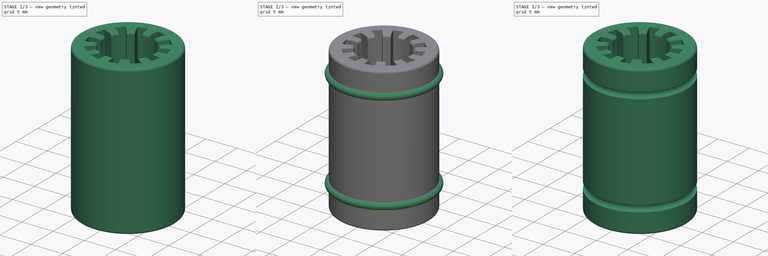
[diagram: build sequence overview — one tinted view per stage of 3, left to right]
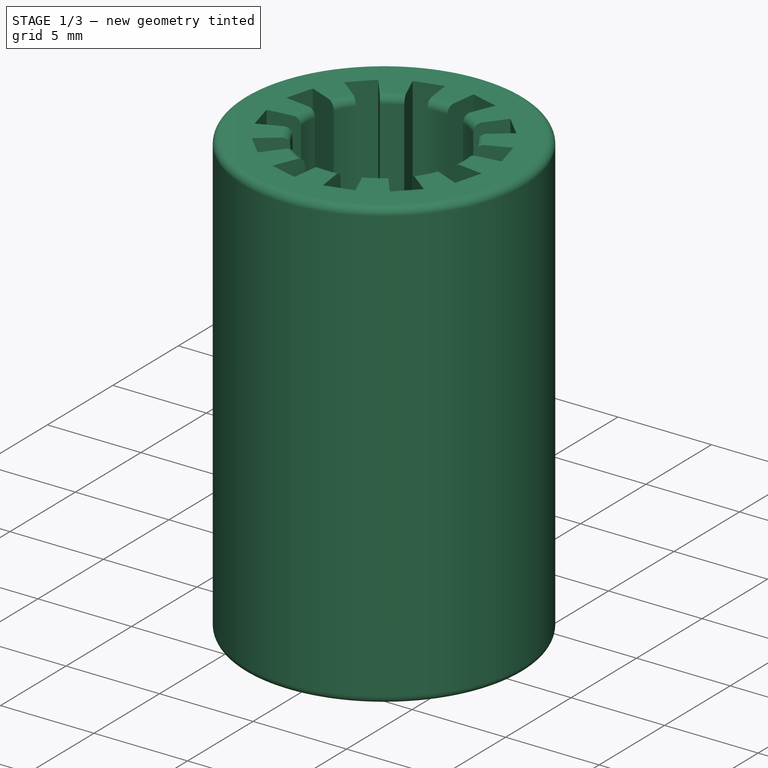
[diagram: stage 1 of 3 — iso view after this stage's code; geometry added in this stage tinted green]
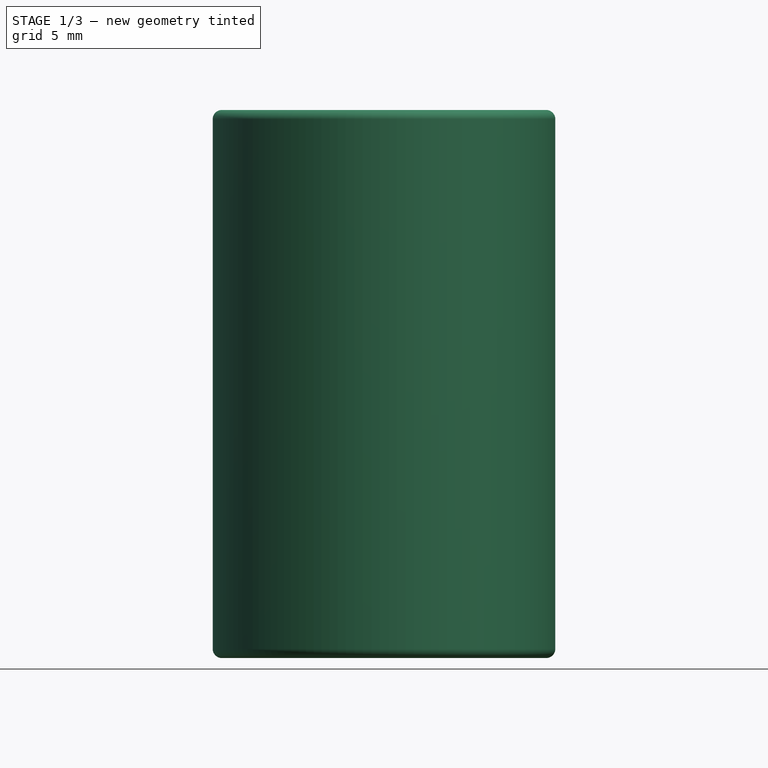
[diagram: stage 1 of 3 — front view after this stage's code; geometry added in this stage tinted green]
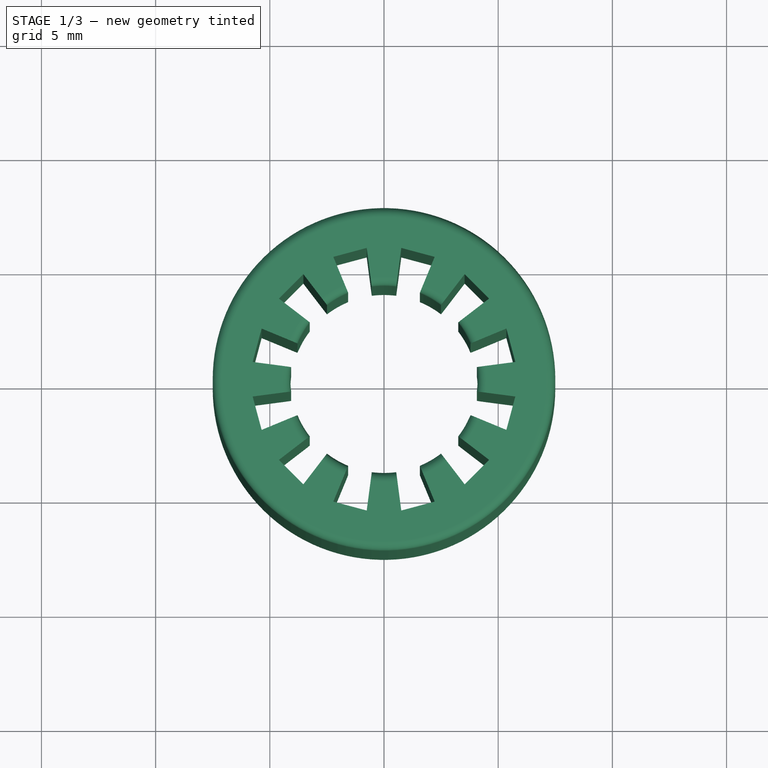
[diagram: stage 1 of 3 — top view after this stage's code; geometry added in this stage tinted green]
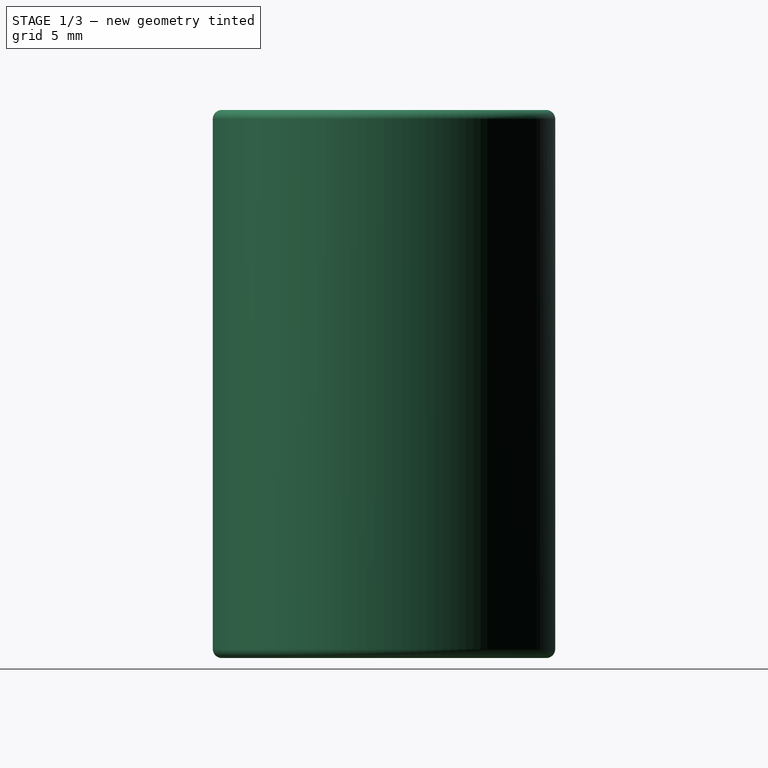
[diagram: stage 1 of 3 — right view after this stage's code; geometry added in this stage tinted green]
FCSTD DOCUMENT  (FreeCAD 0.16R6712 (Git))
Label: SleeveBearing
License: All rights reserved
LicenseURL: http://en.wikipedia.org/wiki/All_rights_reserved
objects: Part::Torus×2, Sketcher::SketchObject×1, PartDesign::Pad×1, Part::MultiFuse×1, PartDesign::Fillet×1, Part::Cut×1, Spreadsheet::Sheet×1
note: 8 computed .brp shape members not serialized (recipe doc carries the construction recipe); baked Part::Feature solids carry a one-line shape summary decoded from their .brp

FEATURE [Sketcher::SketchObject] Sketch
  expr: Constraints[77] = Dimensions.ContactAngle
  expr: Constraints[83] = (Dimensions.InnerRadius + Dimensions.OuterRadius) / 2
  expr: Constraints[0] = Dimensions.OuterRadius
  expr: Constraints[81] = Dimensions.InnerRadius
  sketch-geometry (98):
    g0: Circle CenterX=0 CenterY=0 CenterZ=0 NormalX=0 NormalY=0 NormalZ=1 Radius=7.5
    g1: LineSegment [constr] StartX=-0.978946 StartY=7.43584 StartZ=0 EndX=0.978946 EndY=7.43584 EndZ=0
    g2: LineSegment [constr] StartX=0.978946 StartY=7.43584 StartZ=0 EndX=2.87013 EndY=6.9291 EndZ=0
    g3: LineSegment [constr] StartX=2.87013 StartY=6.9291 StartZ=0 EndX=4.56571 EndY=5.95015 EndZ=0
    g4: LineSegment [constr] StartX=4.56571 StartY=5.95015 StartZ=0 EndX=5.95015 EndY=4.56571 EndZ=0
    g5: LineSegment [constr] StartX=5.95015 StartY=4.56571 StartZ=0 EndX=6.9291 EndY=2.87013 EndZ=0
    g6: LineSegment [constr] StartX=6.9291 StartY=2.87013 StartZ=0 EndX=7.43584 EndY=0.978946 EndZ=0
    g7: LineSegment [constr] StartX=7.43584 StartY=0.978946 StartZ=0 EndX=7.43584 EndY=-0.978946 EndZ=0
    g8: LineSegment [constr] StartX=7.43584 StartY=-0.978946 StartZ=0 EndX=6.9291 EndY=-2.87013 EndZ=0
    g9: LineSegment [constr] StartX=6.9291 StartY=-2.87013 StartZ=0 EndX=5.95015 EndY=-4.56571 EndZ=0
    g10: LineSegment [constr] StartX=5.95015 StartY=-4.56571 StartZ=0 EndX=4.56571 EndY=-5.95015 EndZ=0
    g11: LineSegment [constr] StartX=4.56571 StartY=-5.95015 StartZ=0 EndX=2.87013 EndY=-6.9291 EndZ=0
    g12: LineSegment [constr] StartX=2.87013 StartY=-6.9291 StartZ=0 EndX=0.978946 EndY=-7.43584 EndZ=0
    g13: LineSegment [constr] StartX=0.978946 StartY=-7.43584 StartZ=0 EndX=-0.978946 EndY=-7.43584 EndZ=0
    g14: LineSegment [constr] StartX=-0.978946 StartY=-7.43584 StartZ=0 EndX=-2.87013 EndY=-6.9291 EndZ=0
    g15: LineSegment [constr] StartX=-2.87013 StartY=-6.9291 StartZ=0 EndX=-4.56571 EndY=-5.95015 EndZ=0
    g16: LineSegment [constr] StartX=-4.56571 StartY=-5.95015 StartZ=0 EndX=-5.95015 EndY=-4.56571 EndZ=0
    g17: LineSegment [constr] StartX=-5.95015 StartY=-4.56571 StartZ=0 EndX=-6.9291 EndY=-2.87013 EndZ=0
    g18: LineSegment [constr] StartX=-6.9291 StartY=-2.87013 StartZ=0 EndX=-7.43584 EndY=-0.978946 EndZ=0
    g19: LineSegment [constr] StartX=-7.43584 StartY=-0.978946 StartZ=0 EndX=-7.43584 EndY=0.978946 EndZ=0
    g20: LineSegment [constr] StartX=-7.43584 StartY=0.978946 StartZ=0 EndX=-6.9291 EndY=2.87013 EndZ=0
    g21: LineSegment [constr] StartX=-6.9291 StartY=2.87013 StartZ=0 EndX=-5.95015 EndY=4.56571 EndZ=0
    g22: LineSegment [constr] StartX=-5.95015 StartY=4.56571 StartZ=0 EndX=-4.56571 EndY=5.95015 EndZ=0
    g23: LineSegment [constr] StartX=-4.56571 StartY=5.95015 StartZ=0 EndX=-2.87013 EndY=6.9291 EndZ=0
    g24: LineSegment [constr] StartX=-2.87013 StartY=6.9291 StartZ=0 EndX=-0.978946 EndY=7.43584 EndZ=0
    g25: LineSegment [constr] StartX=0 StartY=0 StartZ=0 EndX=-0.978946 EndY=7.43584 EndZ=0
    g26: LineSegment [constr] StartX=0 StartY=0 StartZ=0 EndX=0.978946 EndY=7.43584 EndZ=0
    g27: ArcOfCircle CenterX=0 CenterY=0 CenterZ=0 NormalX=0 NormalY=0 NormalZ=1 Radius=4.1 StartAngle=1.4399 EndAngle=1.7017
    g28: Circle [constr] CenterX=0 CenterY=0 CenterZ=0 NormalX=0 NormalY=0 NormalZ=1 Radius=5.8
    g29: LineSegment [constr] StartX=0 StartY=0 StartZ=0 EndX=2.87013 EndY=6.9291 EndZ=0
    g30: LineSegment [constr] StartX=0 StartY=0 StartZ=0 EndX=4.56571 EndY=5.95015 EndZ=0
    g31: LineSegment [constr] StartX=0 StartY=0 StartZ=0 EndX=5.95015 EndY=4.56571 EndZ=0
    g32: LineSegment [constr] StartX=0 StartY=0 StartZ=0 EndX=-2.87013 EndY=6.9291 EndZ=0
    g33: LineSegment [constr] StartX=0 StartY=0 StartZ=0 EndX=-4.56571 EndY=5.95015 EndZ=0
    g34: LineSegment [constr] StartX=0 StartY=0 StartZ=0 EndX=-5.95015 EndY=4.56571 EndZ=0
    g35: LineSegment [constr] StartX=0 StartY=0 StartZ=0 EndX=-6.9291 EndY=2.87013 EndZ=0
    g36: LineSegment [constr] StartX=0 StartY=0 StartZ=0 EndX=-7.43584 EndY=0.978946 EndZ=0
    g37: LineSegment [constr] StartX=0 StartY=0 StartZ=0 EndX=6.9291 EndY=2.87013 EndZ=0
    g38: LineSegment [constr] StartX=0 StartY=0 StartZ=0 EndX=7.43584 EndY=0.978946 EndZ=0
    g39: LineSegment [constr] StartX=0 StartY=0 StartZ=0 EndX=7.43584 EndY=-0.978946 EndZ=0
    g40: LineSegment [constr] StartX=0 StartY=0 StartZ=0 EndX=-7.43584 EndY=-0.978946 EndZ=0
    g41: LineSegment [constr] StartX=0 StartY=0 StartZ=0 EndX=-6.9291 EndY=-2.87013 EndZ=0
    g42: LineSegment [constr] StartX=0 StartY=0 StartZ=0 EndX=6.9291 EndY=-2.87013 EndZ=0
    g43: LineSegment [constr] StartX=0 StartY=0 StartZ=0 EndX=5.95015 EndY=-4.56571 EndZ=0
    g44: LineSegment [constr] StartX=0 StartY=0 StartZ=0 EndX=4.56571 EndY=-5.95015 EndZ=0
    g45: LineSegment [constr] StartX=0 StartY=0 StartZ=0 EndX=-5.95015 EndY=-4.56571 EndZ=0
    g46: LineSegment [constr] StartX=0 StartY=0 StartZ=0 EndX=-4.56571 EndY=-5.95015 EndZ=0
    g47: LineSegment [constr] StartX=0 StartY=0 StartZ=0 EndX=-2.87013 EndY=-6.9291 EndZ=0
    g48: LineSegment [constr] StartX=0 StartY=0 StartZ=0 EndX=-0.978946 EndY=-7.43584 EndZ=0
    g49: LineSegment [constr] StartX=0 StartY=0 StartZ=0 EndX=0.978946 EndY=-7.43584 EndZ=0
    g50: LineSegment [constr] StartX=0 StartY=0 StartZ=0 EndX=2.87013 EndY=-6.9291 EndZ=0
    g51: ArcOfCircle CenterX=0 CenterY=0 CenterZ=0 NormalX=0 NormalY=0 NormalZ=1 Radius=4.1 StartAngle=0.916298 EndAngle=1.1781
    g52: ArcOfCircle CenterX=0 CenterY=0 CenterZ=0 NormalX=0 NormalY=0 NormalZ=1 Radius=4.1 StartAngle=0.392699 EndAngle=0.654498
    g53: ArcOfCircle CenterX=0 CenterY=0 CenterZ=0 NormalX=0 NormalY=0 NormalZ=1 Radius=4.1 StartAngle=6.15229 EndAngle=6.41409
    g54: ArcOfCircle CenterX=0 CenterY=0 CenterZ=0 NormalX=0 NormalY=0 NormalZ=1 Radius=4.1 StartAngle=5.62869 EndAngle=5.89049
    g55: ArcOfCircle CenterX=0 CenterY=0 CenterZ=0 NormalX=0 NormalY=0 NormalZ=1 Radius=4.1 StartAngle=5.10509 EndAngle=5.36689
    g56: ArcOfCircle CenterX=0 CenterY=0 CenterZ=0 NormalX=0 NormalY=0 NormalZ=1 Radius=4.1 StartAngle=4.58149 EndAngle=4.84329
    g57: ArcOfCircle CenterX=0 CenterY=0 CenterZ=0 NormalX=0 NormalY=0 NormalZ=1 Radius=4.1 StartAngle=4.05789 EndAngle=4.31969
    g58: ArcOfCircle CenterX=0 CenterY=0 CenterZ=0 NormalX=0 NormalY=0 NormalZ=1 Radius=4.1 StartAngle=3.53429 EndAngle=3.79609
    g59: ArcOfCircle CenterX=0 CenterY=0 CenterZ=0 NormalX=0 NormalY=0 NormalZ=1 Radius=4.1 StartAngle=3.01069 EndAngle=3.27249
    g60: ArcOfCircle CenterX=0 CenterY=0 CenterZ=0 NormalX=0 NormalY=0 NormalZ=1 Radius=4.1 StartAngle=2.48709 EndAngle=2.74889
    g61: ArcOfCircle CenterX=0 CenterY=0 CenterZ=0 NormalX=0 NormalY=0 NormalZ=1 Radius=4.1 StartAngle=1.9635 EndAngle=2.22529
    g62: LineSegment StartX=-1.569 StartY=3.78791 StartZ=0 EndX=-2.21956 EndY=5.3585 EndZ=0
    g63: LineSegment StartX=-2.21956 StartY=5.3585 StartZ=0 EndX=-0.757052 EndY=5.75038 EndZ=0
    g64: LineSegment StartX=-0.757052 StartY=5.75038 StartZ=0 EndX=-0.535157 EndY=4.06492 EndZ=0
    g65: LineSegment StartX=0.535157 StartY=4.06492 StartZ=0 EndX=0.757052 EndY=5.75038 EndZ=0
    g66: LineSegment StartX=0.757052 StartY=5.75038 StartZ=0 EndX=2.21956 EndY=5.3585 EndZ=0
    g67: LineSegment StartX=2.21956 StartY=5.3585 StartZ=0 EndX=1.569 EndY=3.78791 EndZ=0
    g68: LineSegment StartX=2.49592 StartY=3.25275 StartZ=0 EndX=3.53082 EndY=4.60145 EndZ=0
    g69: LineSegment StartX=3.53082 StartY=4.60145 StartZ=0 EndX=4.60145 EndY=3.53082 EndZ=0
    g70: LineSegment StartX=4.60145 StartY=3.53082 StartZ=0 EndX=3.25275 EndY=2.49592 EndZ=0
    g71: LineSegment StartX=3.78791 StartY=1.569 StartZ=0 EndX=5.3585 EndY=2.21956 EndZ=0
    g72: LineSegment StartX=5.3585 StartY=2.21956 StartZ=0 EndX=5.75038 EndY=0.757052 EndZ=0
    g73: LineSegment StartX=5.75038 StartY=0.757052 StartZ=0 EndX=4.06492 EndY=0.535157 EndZ=0
    g74: LineSegment StartX=4.06492 StartY=-0.535157 StartZ=0 EndX=5.75038 EndY=-0.757052 EndZ=0
    g75: LineSegment StartX=5.75038 StartY=-0.757052 StartZ=0 EndX=5.3585 EndY=-2.21956 EndZ=0
    g76: LineSegment StartX=5.3585 StartY=-2.21956 StartZ=0 EndX=3.78791 EndY=-1.569 EndZ=0
    g77: LineSegment StartX=3.25275 StartY=-2.49592 StartZ=0 EndX=4.60145 EndY=-3.53082 EndZ=0
    g78: LineSegment StartX=4.60145 StartY=-3.53082 StartZ=0 EndX=3.53082 EndY=-4.60145 EndZ=0
    g79: LineSegment StartX=3.53082 StartY=-4.60145 StartZ=0 EndX=2.49592 EndY=-3.25275 EndZ=0
    g80: LineSegment StartX=-2.49592 StartY=3.25275 StartZ=0 EndX=-3.53082 EndY=4.60145 EndZ=0
    g81: LineSegment StartX=-3.53082 StartY=4.60145 StartZ=0 EndX=-4.60145 EndY=3.53082 EndZ=0
    g82: LineSegment StartX=-4.60145 StartY=3.53082 StartZ=0 EndX=-3.25275 EndY=2.49592 EndZ=0
    g83: LineSegment StartX=-3.78791 StartY=1.569 StartZ=0 EndX=-5.3585 EndY=2.21956 EndZ=0
    g84: LineSegment StartX=-5.3585 StartY=2.21956 StartZ=0 EndX=-5.75038 EndY=0.757052 EndZ=0
    g85: LineSegment StartX=-5.75038 StartY=0.757052 StartZ=0 EndX=-4.06492 EndY=0.535157 EndZ=0
    g86: LineSegment StartX=-4.06492 StartY=-0.535157 StartZ=0 EndX=-5.75038 EndY=-0.757052 EndZ=0
    g87: LineSegment StartX=-5.75038 StartY=-0.757052 StartZ=0 EndX=-5.3585 EndY=-2.21956 EndZ=0
    g88: LineSegment StartX=-5.3585 StartY=-2.21956 StartZ=0 EndX=-3.78791 EndY=-1.569 EndZ=0
    g89: LineSegment StartX=-3.25275 StartY=-2.49592 StartZ=0 EndX=-4.60145 EndY=-3.53082 EndZ=0
    g90: LineSegment StartX=-4.60145 StartY=-3.53082 StartZ=0 EndX=-3.53082 EndY=-4.60145 EndZ=0
    g91: LineSegment StartX=-3.53082 StartY=-4.60145 StartZ=0 EndX=-2.49592 EndY=-3.25275 EndZ=0
    g92: LineSegment StartX=-1.569 StartY=-3.78791 StartZ=0 EndX=-2.21956 EndY=-5.3585 EndZ=0
    g93: LineSegment StartX=-2.21956 StartY=-5.3585 StartZ=0 EndX=-0.757052 EndY=-5.75038 EndZ=0
    g94: LineSegment StartX=-0.757052 StartY=-5.75038 StartZ=0 EndX=-0.535157 EndY=-4.06492 EndZ=0
    g95: LineSegment StartX=0.535157 StartY=-4.06492 StartZ=0 EndX=0.757052 EndY=-5.75038 EndZ=0
    g96: LineSegment StartX=0.757052 StartY=-5.75038 StartZ=0 EndX=2.21956 EndY=-5.3585 EndZ=0
    g97: LineSegment StartX=2.21956 StartY=-5.3585 StartZ=0 EndX=1.569 EndY=-3.78791 EndZ=0
  constraints (268):
    c: Radius(g0) = 7.5
    c: Coincident(g1,g2)
    c: Coincident(g2,g3)
    c: Coincident(g3,g4)
    c: Coincident(g4,g5)
    c: Coincident(g5,g6)
    c: Coincident(g6,g7)
    c: Coincident(g7,g8)
    c: Coincident(g8,g9)
    c: Coincident(g9,g10)
    c: Coincident(g10,g11)
    c: Coincident(g11,g12)
    c: Coincident(g12,g13)
    c: Coincident(g13,g14)
    c: Coincident(g14,g15)
    c: Coincident(g15,g16)
    c: Coincident(g16,g17)
    c: Coincident(g17,g18)
    c: Coincident(g18,g19)
    c: Coincident(g19,g20)
    c: Coincident(g20,g21)
    c: Coincident(g21,g22)
    c: Coincident(g22,g23)
    c: Coincident(g23,g24)
    c: Coincident(g24,g1)
    c: PointOnObject(g4,g0)
    c: PointOnObject(g5,g0)
    c: PointOnObject(g6,g0)
    c: PointOnObject(g7,g0)
    c: PointOnObject(g8,g0)
    c: PointOnObject(g9,g0)
    c: PointOnObject(g10,g0)
    c: Coincident(g0,g-1)
    c: PointOnObject(g11,g0)
    c: PointOnObject(g12,g0)
    c: PointOnObject(g1,g0)
    c: PointOnObject(g1,g0)
    c: PointOnObject(g23,g0)
    c: PointOnObject(g22,g0)
    c: PointOnObject(g21,g0)
    c: PointOnObject(g20,g0)
    c: PointOnObject(g19,g0)
    c: PointOnObject(g2,g0)
    c: PointOnObject(g3,g0)
    c: PointOnObject(g18,g0)
    c: PointOnObject(g17,g0)
    c: PointOnObject(g16,g0)
    c: PointOnObject(g14,g0)
    c: PointOnObject(g13,g0)
    c: PointOnObject(g15,g0)
    c: Horizontal(g1)
    c: Equal(g1,g3)
    c: Equal(g3,g5)
    c: Equal(g5,g7)
    c: Equal(g7,g9)
    c: Equal(g9,g11)
    c: Equal(g11,g13)
    c: Equal(g13,g15)
    c: Equal(g15,g17)
    c: Equal(g17,g19)
    c: Equal(g19,g21)
    c: Equal(g21,g23)
    c: Equal(g2,g4)
    c: Equal(g4,g6)
    c: Equal(g6,g8)
    c: Equal(g8,g10)
    c: Equal(g10,g12)
    c: Equal(g12,g14)
    c: Equal(g14,g16)
    c: Equal(g16,g18)
    c: Equal(g18,g20)
    c: Equal(g20,g22)
    c: Equal(g22,g24)
    c: Coincident(g25,g-1)
    c: Coincident(g25,g1)
    c: Coincident(g26,g-1)
    c: Coincident(g26,g1)
    c: Angle(g26,g25) = 0.261799
    c: Coincident(g27,g-1)
    c: PointOnObject(g27,g25)
    c: PointOnObject(g27,g26)
    c: Radius(g27) = 4.1
    c: Coincident(g28,g-1)
    c: Radius(g28) = 5.8
    c: Coincident(g29,g-1)
    c: Coincident(g29,g2)
    c: Coincident(g30,g-1)
    c: Coincident(g30,g3)
    c: Coincident(g31,g-1)
    c: Coincident(g31,g4)
    c: Coincident(g32,g-1)
    c: Coincident(g32,g23)
    c: Coincident(g33,g-1)
    c: Coincident(g33,g22)
    c: Coincident(g34,g-1)
    c: Coincident(g34,g21)
    c: Coincident(g35,g-1)
    c: Coincident(g35,g20)
    c: Coincident(g36,g-1)
    c: Coincident(g36,g19)
    c: Coincident(g37,g-1)
    c: Coincident(g37,g5)
    c: Coincident(g38,g-1)
    c: Coincident(g38,g6)
    c: Coincident(g39,g-1)
    c: Coincident(g39,g7)
    c: Coincident(g40,g-1)
    c: Coincident(g40,g18)
    c: Coincident(g41,g-1)
    c: Coincident(g41,g17)
    c: Coincident(g42,g-1)
    c: Coincident(g42,g8)
    c: Coincident(g43,g-1)
    c: Coincident(g43,g9)
    c: Coincident(g44,g-1)
    c: Coincident(g44,g10)
    c: Coincident(g45,g-1)
    c: Coincident(g45,g16)
    c: Coincident(g46,g-1)
    c: Coincident(g46,g15)
    c: Coincident(g47,g-1)
    c: Coincident(g47,g14)
    c: Coincident(g48,g-1)
    c: Coincident(g48,g13)
    c: Coincident(g49,g-1)
    c: Coincident(g49,g12)
    c: Coincident(g50,g-1)
    c: Coincident(g50,g11)
    c: Coincident(g51,g-1)
    c: PointOnObject(g51,g29)
    c: PointOnObject(g51,g30)
    c: Coincident(g52,g-1)
    c: PointOnObject(g52,g31)
    c: PointOnObject(g52,g37)
    c: Coincident(g53,g-1)
    c: PointOnObject(g53,g38)
    c: PointOnObject(g53,g39)
    c: Coincident(g54,g-1)
    c: PointOnObject(g54,g42)
    c: PointOnObject(g54,g43)
    c: Coincident(g55,g-1)
    c: PointOnObject(g55,g44)
    c: PointOnObject(g55,g50)
    c: Coincident(g56,g-1)
    c: PointOnObject(g56,g49)
    c: PointOnObject(g56,g48)
    c: Coincident(g57,g-1)
    c: PointOnObject(g57,g47)
    c: PointOnObject(g57,g46)
    c: Coincident(g58,g-1)
    c: PointOnObject(g58,g45)
    c: PointOnObject(g58,g41)
    c: Coincident(g59,g-1)
    c: PointOnObject(g59,g40)
    c: PointOnObject(g59,g36)
    c: Coincident(g60,g-1)
    c: PointOnObject(g60,g35)
    c: PointOnObject(g60,g34)
    c: Coincident(g61,g-1)
    c: PointOnObject(g61,g33)
    c: PointOnObject(g61,g32)
    c: Equal(g51,g52)
    c: Equal(g52,g53)
    c: Equal(g53,g54)
    c: Equal(g54,g55)
    c: Equal(g55,g56)
    c: Equal(g56,g57)
    c: Equal(g57,g58)
    c: Equal(g58,g59)
    c: Equal(g59,g60)
    c: Equal(g60,g61)
    c: Equal(g27,g51)
    c: Coincident(g61,g62)
    c: Coincident(g62,g63)
    c: PointOnObject(g63,g25)
    c: Coincident(g63,g64)
    c: Coincident(g64,g27)
    c: PointOnObject(g63,g28)
    c: PointOnObject(g62,g32)
    c: Coincident(g65,g66)
    c: Coincident(g66,g67)
    c: Coincident(g67,g51)
    c: PointOnObject(g66,g29)
    c: PointOnObject(g66,g28)
    c: PointOnObject(g65,g28)
    c: PointOnObject(g65,g26)
    c: PointOnObject(g62,g28)
    c: Coincident(g27,g65)
    c: Coincident(g51,g68)
    c: Coincident(g68,g69)
    c: Coincident(g69,g70)
    c: Coincident(g70,g52)
    c: PointOnObject(g68,g30)
    c: PointOnObject(g68,g28)
    c: PointOnObject(g69,g31)
    c: PointOnObject(g69,g28)
    c: Coincident(g52,g71)
    c: Coincident(g71,g72)
    c: Coincident(g72,g73)
    c: Coincident(g73,g53)
    c: PointOnObject(g71,g37)
    c: PointOnObject(g71,g28)
    c: PointOnObject(g72,g38)
    c: PointOnObject(g72,g28)
    c: Coincident(g53,g74)
    c: Coincident(g74,g75)
    c: Coincident(g75,g76)
    c: Coincident(g76,g54)
    c: PointOnObject(g74,g39)
    c: PointOnObject(g74,g28)
    c: PointOnObject(g75,g28)
    c: PointOnObject(g75,g42)
    c: Coincident(g54,g77)
    c: Coincident(g77,g78)
    c: Coincident(g78,g79)
    c: Coincident(g79,g55)
    c: PointOnObject(g78,g28)
    c: PointOnObject(g78,g44)
    c: PointOnObject(g77,g43)
    c: PointOnObject(g77,g28)
    c: Coincident(g61,g80)
    c: Coincident(g80,g81)
    c: Coincident(g81,g82)
    c: Coincident(g82,g60)
    c: Coincident(g60,g83)
    c: Coincident(g83,g84)
    c: Coincident(g84,g85)
    c: Coincident(g85,g59)
    c: Coincident(g59,g86)
    c: Coincident(g86,g87)
    c: Coincident(g87,g88)
    c: Coincident(g88,g58)
    c: Coincident(g58,g89)
    c: Coincident(g89,g90)
    c: Coincident(g90,g91)
    c: Coincident(g91,g57)
    c: Coincident(g57,g92)
    c: Coincident(g92,g93)
    c: Coincident(g93,g94)
    c: Coincident(g94,g56)
    c: Coincident(g56,g95)
    c: Coincident(g95,g96)
    c: Coincident(g96,g97)
    c: Coincident(g97,g55)
    c: PointOnObject(g96,g28)
    c: PointOnObject(g96,g50)
    c: PointOnObject(g95,g28)
    c: PointOnObject(g95,g49)
    c: PointOnObject(g93,g48)
    c: PointOnObject(g93,g28)
    c: PointOnObject(g92,g47)
    c: PointOnObject(g92,g28)
    c: PointOnObject(g90,g46)
    c: PointOnObject(g90,g28)
    c: PointOnObject(g89,g45)
    c: PointOnObject(g89,g28)
    c: PointOnObject(g87,g41)
    c: PointOnObject(g87,g28)
    c: PointOnObject(g86,g40)
    c: PointOnObject(g86,g28)
    c: PointOnObject(g84,g28)
    c: PointOnObject(g84,g36)
    c: PointOnObject(g83,g35)
    c: PointOnObject(g83,g28)
    c: PointOnObject(g81,g34)
    c: PointOnObject(g81,g28)
    c: PointOnObject(g80,g28)
    c: PointOnObject(g80,g33)
FEATURE [PartDesign::Pad] Pad
  Length = 24
  Length2 = 100
  Sketch = -> Sketch
  Type = 0
FEATURE [PartDesign::Fillet] Fillet
  Base = -> Pad [Edge43,Edge31,Edge19,Edge7,Edge139,Edge127,Edge115,Edge103,Edge91,Edge79,Edge67,Edge55,Edge3,Edge2,Edge42,Edge30,Edge18,Edge6,Edge138,Edge126,Edge114,Edge102,Edge90,Edge78,Edge66,Edge54]
  Radius = 0.4
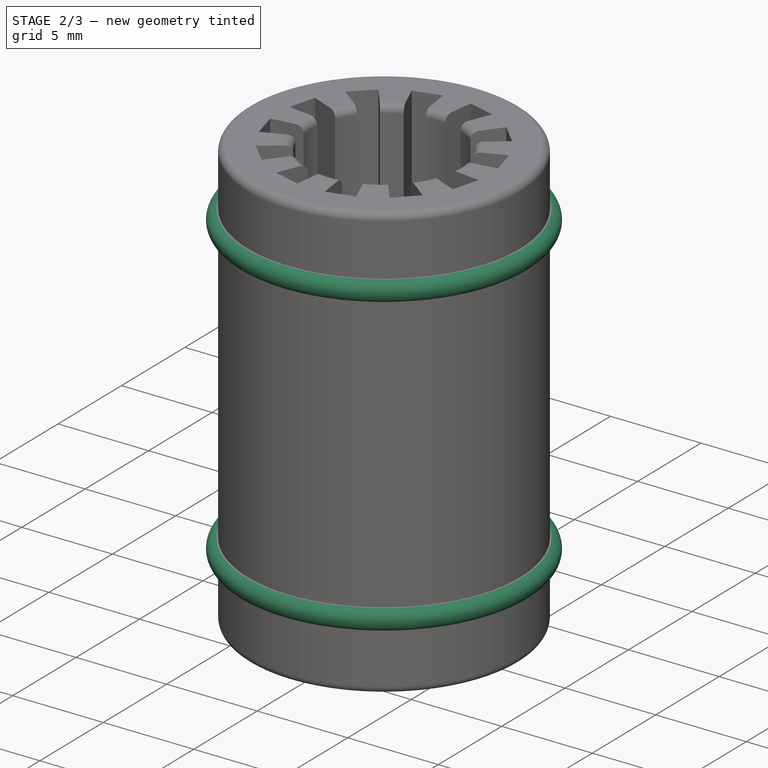
[diagram: stage 2 of 3 — iso view after this stage's code; geometry added in this stage tinted green]
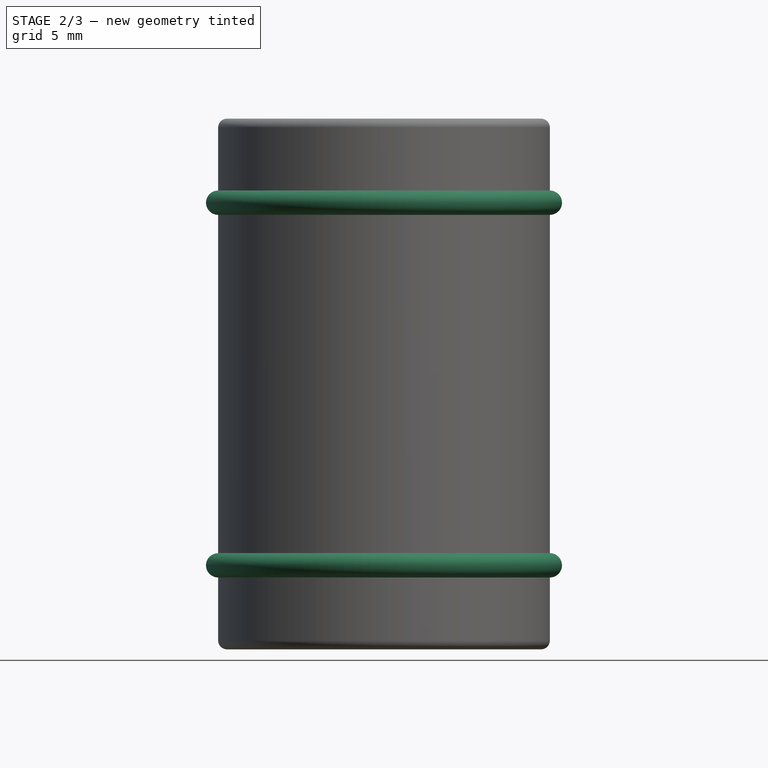
[diagram: stage 2 of 3 — front view after this stage's code; geometry added in this stage tinted green]
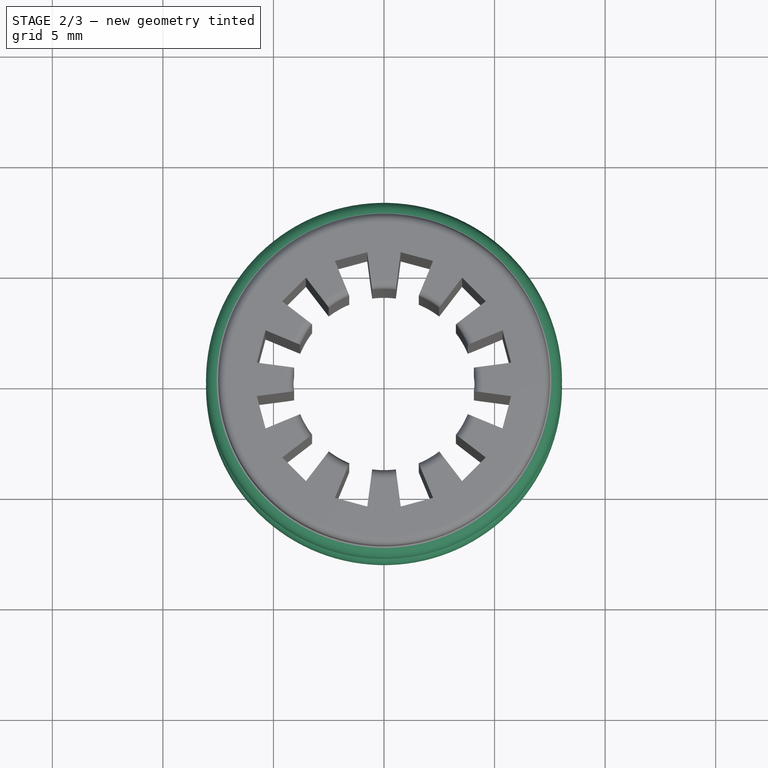
[diagram: stage 2 of 3 — top view after this stage's code; geometry added in this stage tinted green]
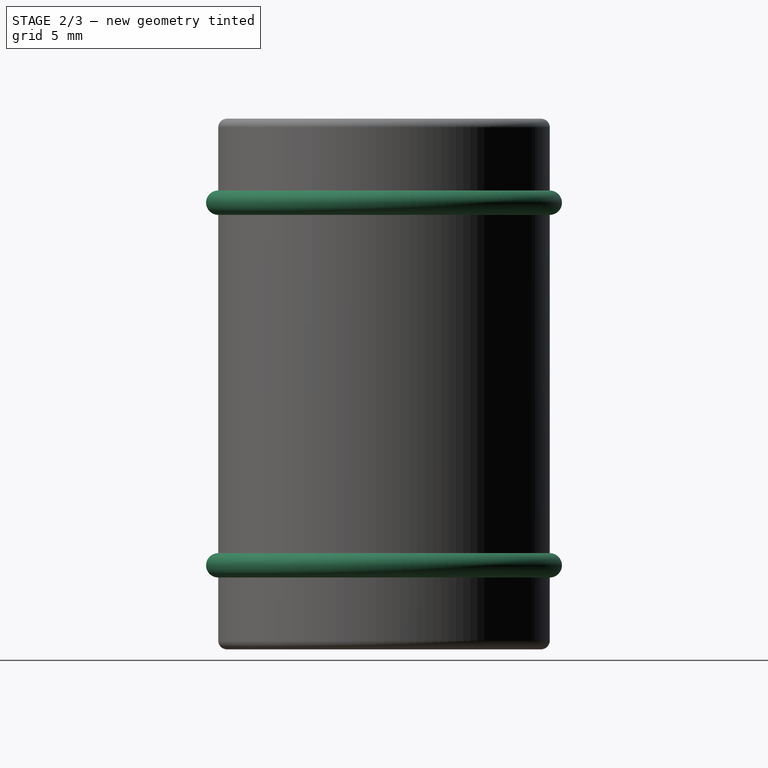
[diagram: stage 2 of 3 — right view after this stage's code; geometry added in this stage tinted green]
FEATURE [Part::Torus] Torus
  Angle1 = -180
  Angle2 = 180
  Angle3 = 360
  Placement = pos=(0,0,3.8) rot=(0,0,1;0rad)
  Radius1 = 7.5
  Radius2 = 0.55
FEATURE [Part::Torus] Torus001
  Angle1 = -180
  Angle2 = 180
  Angle3 = 360
  Placement = pos=(0,0,20.2) rot=(0,0,1;0rad)
  Radius1 = 7.5
  Radius2 = 0.55
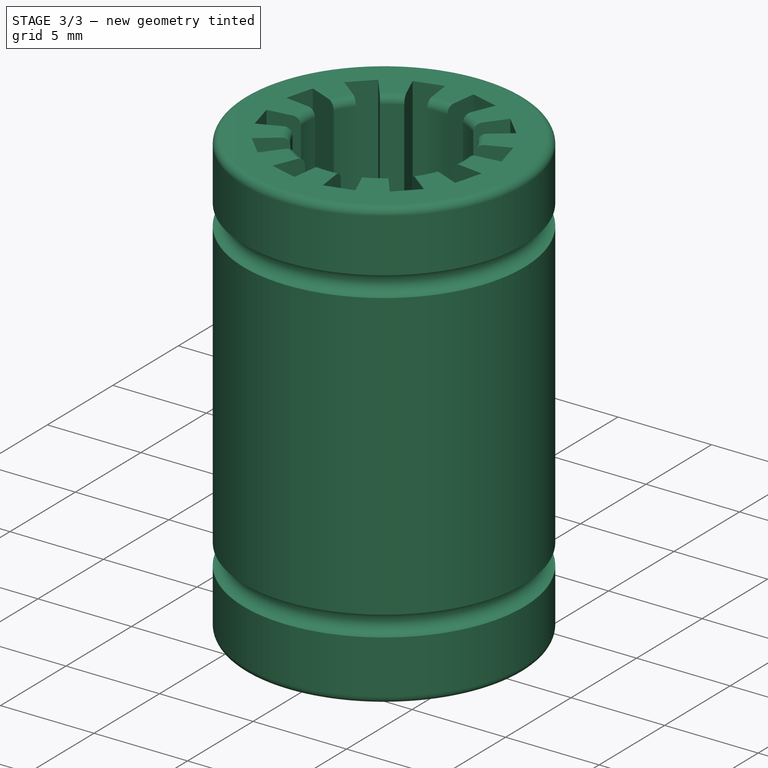
[diagram: stage 3 of 3 — iso view after this stage's code; geometry added in this stage tinted green]
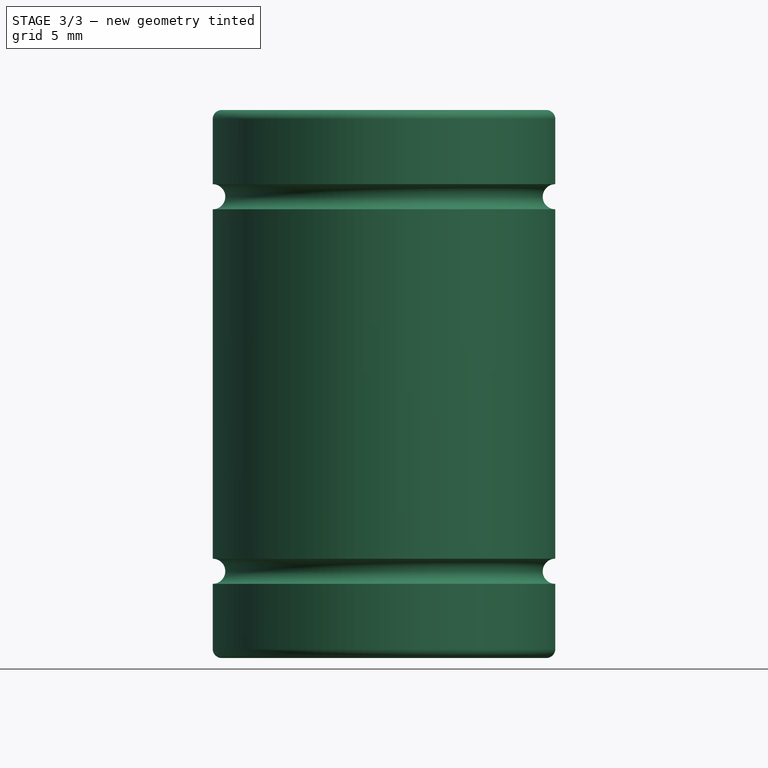
[diagram: stage 3 of 3 — front view after this stage's code; geometry added in this stage tinted green]
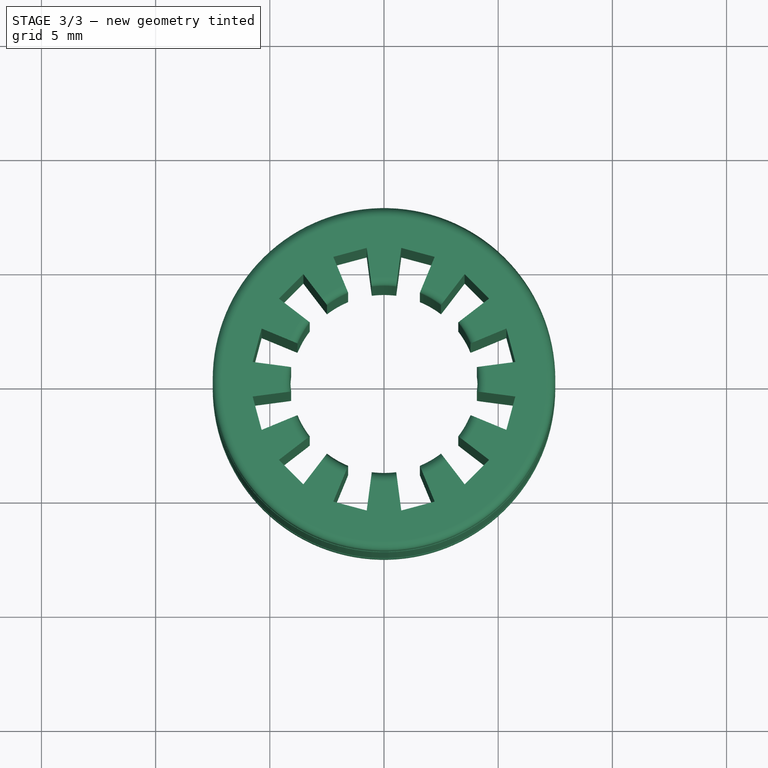
[diagram: stage 3 of 3 — top view after this stage's code; geometry added in this stage tinted green]
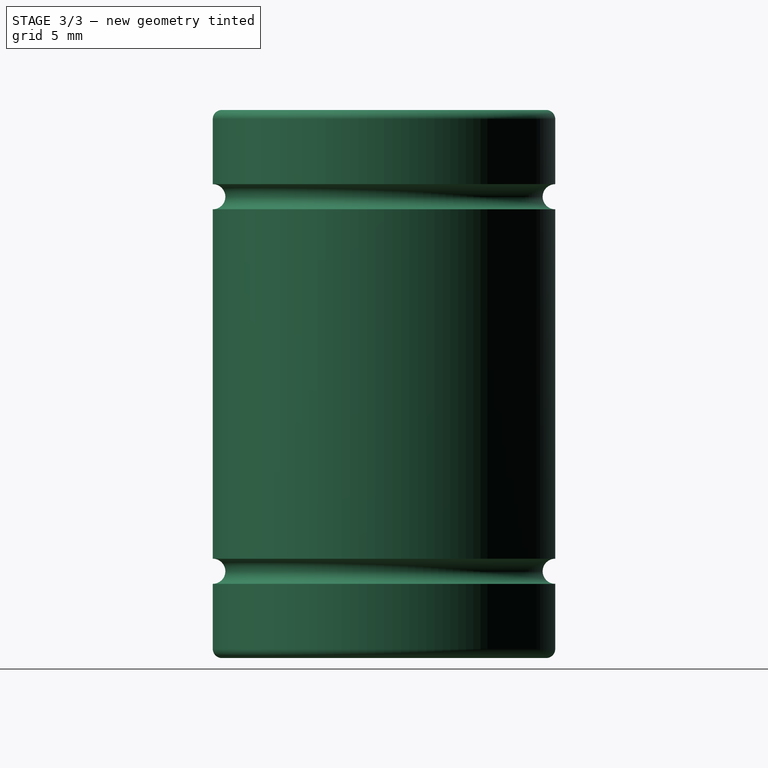
[diagram: stage 3 of 3 — right view after this stage's code; geometry added in this stage tinted green]
FEATURE [Part::MultiFuse] Fusion
  Shapes = -> [Torus001,Torus]
FEATURE [Part::Cut] Cut
  Base = -> Fillet
  Tool = -> Fusion
FEATURE [Spreadsheet::Sheet] Spreadsheet  label="Dimensions"
  cells = B2=InnerRadius; C2(InnerRadius)=4.1; B3=OuterRadius; C3(OuterRadius)=7.5; B4=ContactAngle; C4(ContactAngle)=15
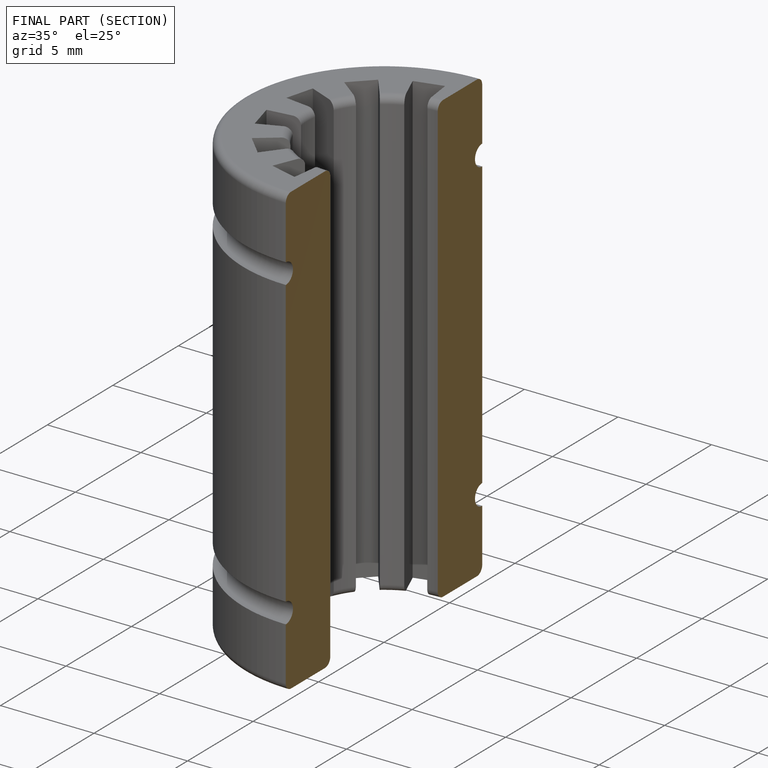
[diagram: finished part — half-section view (interior)]
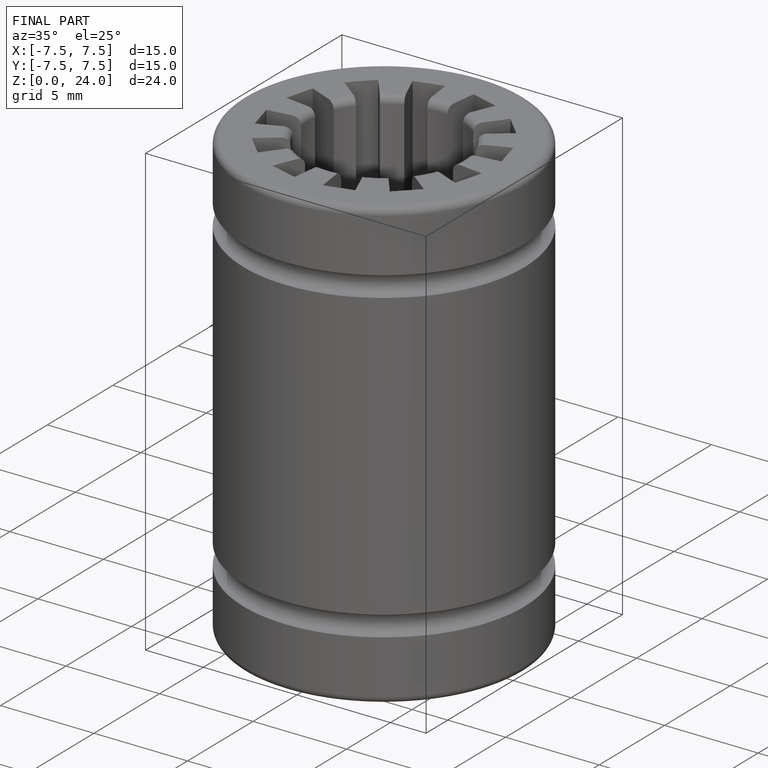
[diagram: finished part — iso view with bounding-box wireframe]
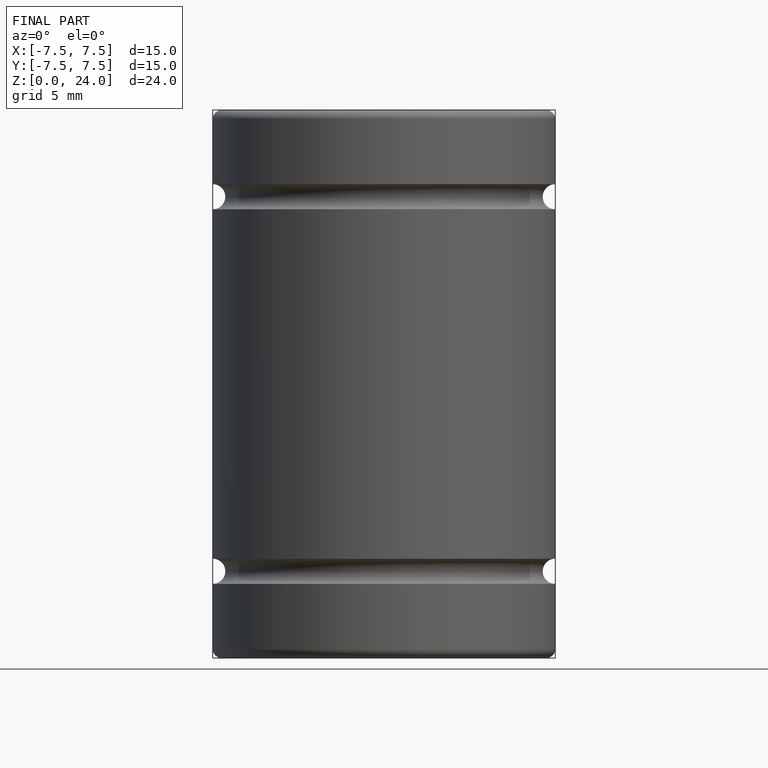
[diagram: finished part — front view with bounding-box wireframe]
